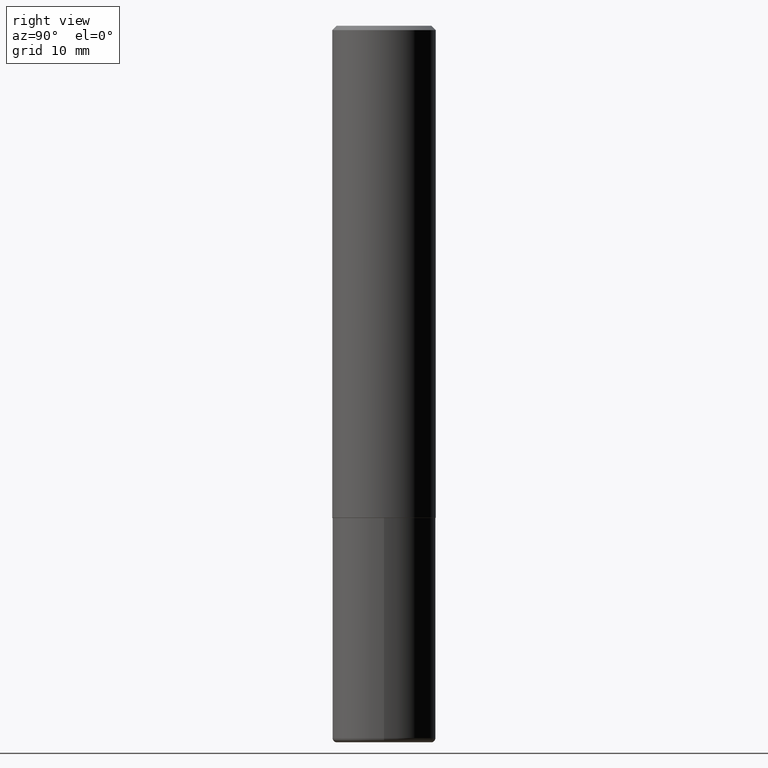
[diagram: clean part render]
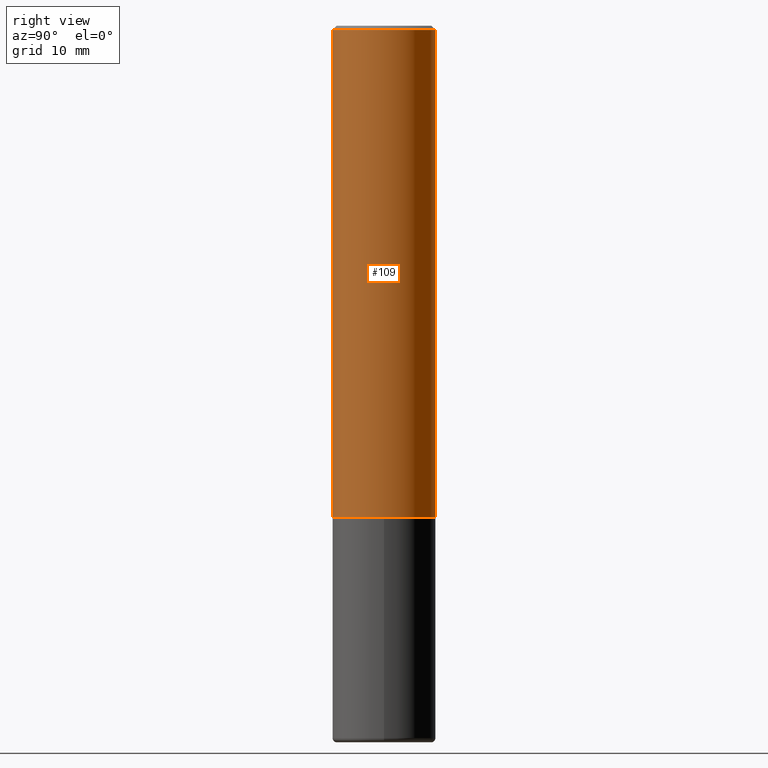
[diagram: same view with one face highlighted and labeled with its STEP entity id]
A machine part, right view. The second image highlights one B-rep face of the part: STEP entity #109.
In plain terms, the highlighted cylindrical surface (partial cylindrical patch) has radius 5.9995 mm, axis along (-0, 0, 1).
Its self-contained STEP definition (entity closure, byte-faithful):
#4 = EDGE_CURVE ( 'NONE', #11, #188, #104, .T. ) ;
#5 = CARTESIAN_POINT ( 'NONE',  ( 4.892729358653232010E-31, -6.980396795029263509E-17, -0.02000000000000005246 ) ) ;
#11 = VERTEX_POINT ( 'NONE', #335 ) ;
#13 = CARTESIAN_POINT ( 'NONE',  ( -1.620449627073635473E-15, -0.2362000000000001321, -0.01999999999999922673 ) ) ;
#24 = VECTOR ( 'NONE', #374, 39.37007874015748143 ) ;
#25 = LINE ( 'NONE', #378, #405 ) ;
#44 = EDGE_CURVE ( 'NONE', #369, #11, #355, .T. ) ;
#48 = CARTESIAN_POINT ( 'NONE',  ( 1.649375784469496920E-15, 0.2361999999999999933, -0.02000000000000087472 ) ) ;
#104 = LINE ( 'NONE', #149, #24 ) ;
#108 = ORIENTED_EDGE ( 'NONE', *, *, #44, .T. ) ;
#109 = ADVANCED_FACE ( 'NONE', ( #373 ), #337, .T. ) ;
#141 = VERTEX_POINT ( 'NONE', #13 ) ;
#142 = AXIS2_PLACEMENT_3D ( 'NONE', #5, #339, #306 ) ;
#149 = CARTESIAN_POINT ( 'NONE',  ( 1.678301941865357577E-15, 0.2362000000000001598, -8.243848614929546726E-16 ) ) ;
#153 = CARTESIAN_POINT ( 'NONE',  ( -1.649375784469443080E-15, -0.2362000000000080979, -2.243099999999999206 ) ) ;
#156 = EDGE_CURVE ( 'NONE', #141, #188, #391, .T. ) ;
#164 = AXIS2_PLACEMENT_3D ( 'NONE', #242, #246, #365 ) ;
#176 = CARTESIAN_POINT ( 'NONE',  ( 0.000000000000000000, 0.000000000000000000, 0.000000000000000000 ) ) ;
#188 = VERTEX_POINT ( 'NONE', #48 ) ;
#208 = EDGE_LOOP ( 'NONE', ( #108, #284, #418, #285 ) ) ;
#242 = CARTESIAN_POINT ( 'NONE',  ( 5.487440612197518325E-29, -7.828864025465052475E-15, -2.243100000000000094 ) ) ;
#246 = DIRECTION ( 'NONE',  ( -2.446364679326609751E-29, 3.490198397514623595E-15, 1.000000000000000000 ) ) ;
#278 = DIRECTION ( 'NONE',  ( -6.982962677686265922E-15, -1.000000000000000000, 3.490198397514623595E-15 ) ) ;
#284 = ORIENTED_EDGE ( 'NONE', *, *, #4, .T. ) ;
#285 = ORIENTED_EDGE ( 'NONE', *, *, #371, .F. ) ;
#289 = DIRECTION ( 'NONE',  ( -2.446364679326609751E-29, 3.490198397514623595E-15, 1.000000000000000000 ) ) ;
#306 = DIRECTION ( 'NONE',  ( -6.982962677686265922E-15, -1.000000000000000000, 3.487819265831410167E-15 ) ) ;
#308 = DIRECTION ( 'NONE',  ( -2.446364679326609751E-29, 3.490198397514623595E-15, 1.000000000000000000 ) ) ;
#335 = CARTESIAN_POINT ( 'NONE',  ( 1.678301941865385779E-15, 0.2361999999999924715, -2.243100000000000982 ) ) ;
#337 = CYLINDRICAL_SURFACE ( 'NONE', #372, 0.2362000000000001598 ) ;
#339 = DIRECTION ( 'NONE',  ( -2.446364679326609751E-29, 3.490198397514623595E-15, 1.000000000000000000 ) ) ;
#355 = CIRCLE ( 'NONE', #164, 0.2362000000000002709 ) ;
#365 = DIRECTION ( 'NONE',  ( -6.982962677686265922E-15, -1.000000000000000000, 3.469747663417773058E-15 ) ) ;
#369 = VERTEX_POINT ( 'NONE', #153 ) ;
#371 = EDGE_CURVE ( 'NONE', #369, #141, #25, .T. ) ;
#372 = AXIS2_PLACEMENT_3D ( 'NONE', #176, #308, #278 ) ;
#373 = FACE_OUTER_BOUND ( 'NONE', #208, .T. ) ;
#374 = DIRECTION ( 'NONE',  ( -2.446364679326609751E-29, 3.490198397514623595E-15, 1.000000000000000000 ) ) ;
#378 = CARTESIAN_POINT ( 'NONE',  ( -1.649375784469497117E-15, -0.2362000000000001598, 8.243848614929546726E-16 ) ) ;
#391 = CIRCLE ( 'NONE', #142, 0.2362000000000000766 ) ;
#405 = VECTOR ( 'NONE', #289, 39.37007874015748143 ) ;
#418 = ORIENTED_EDGE ( 'NONE', *, *, #156, .F. ) ;